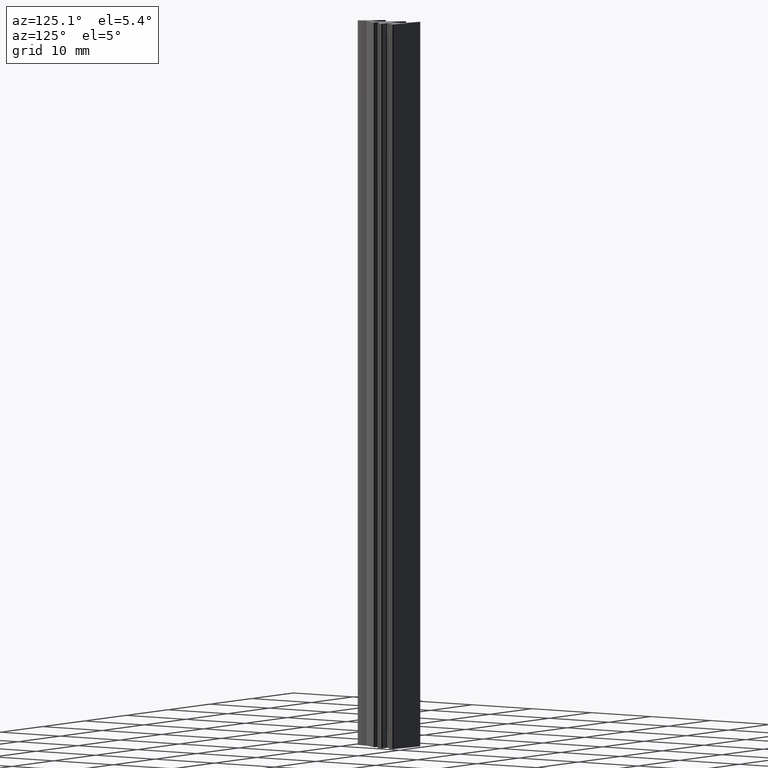
[diagram: clean part render]
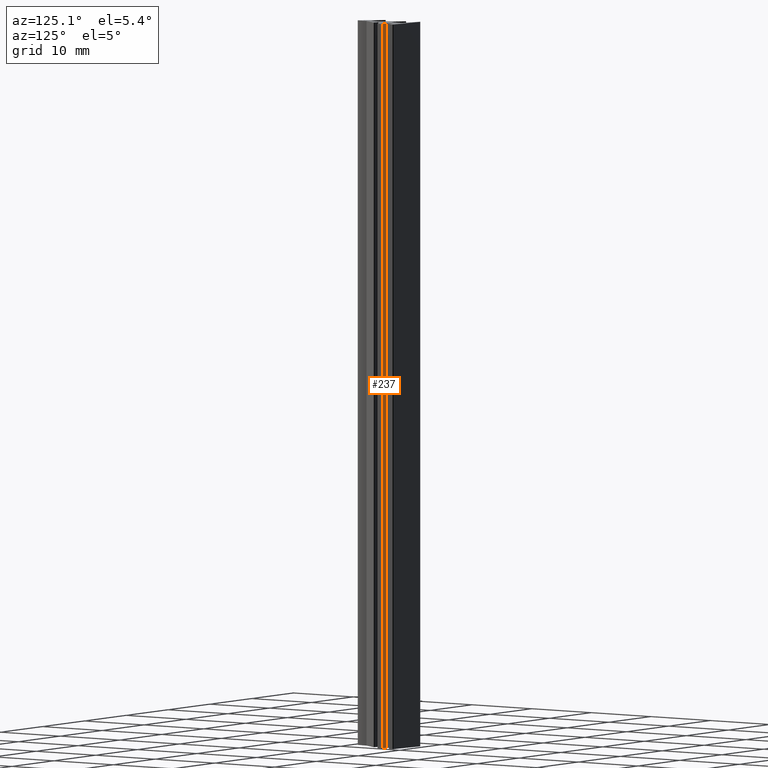
[diagram: same view with one face highlighted and labeled with its STEP entity id]
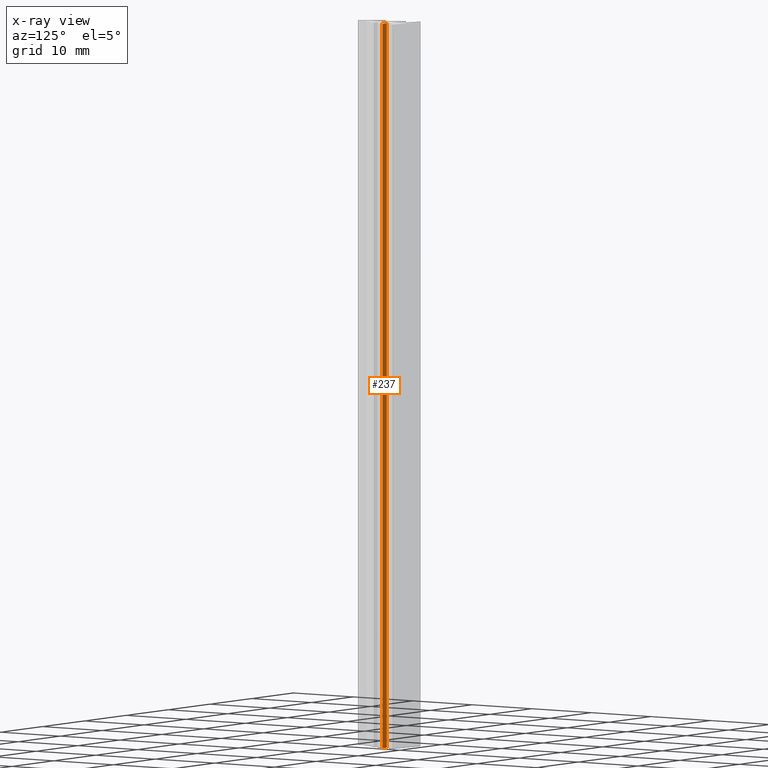
[diagram: x-ray of the same camera — body ghosted, the highlighted face saturated]
A machine part, auxiliary view. The second image highlights one B-rep face of the part: STEP entity #237.
The next image is the same camera in x-ray: the body ghosted, the highlighted face saturated — about 0% of this face is hidden behind the body in this view.
In plain terms, the highlighted planar face has unit normal (0, 1, 0).
Its self-contained STEP definition (entity closure, byte-faithful):
#179=CARTESIAN_POINT('',(2.288606489881204,5.772002627998518,0.0));
#180=VERTEX_POINT('',#179);
#188=CARTESIAN_POINT('',(2.288606489881204,5.772002627998518,100.0));
#189=VERTEX_POINT('',#188);
#190=CARTESIAN_POINT('',(2.288606489881204,5.772002627998518,0.0));
#191=DIRECTION('',(0.0,0.0,1.0));
#192=VECTOR('',#191,100.0);
#193=LINE('',#190,#192);
#194=EDGE_CURVE('',#180,#189,#193,.T.);
#207=CARTESIAN_POINT('',(2.288606489881204,5.772002627998518,0.0));
#208=DIRECTION('',(0.0,1.0,0.0));
#209=DIRECTION('',(-1.0,0.0,0.0));
#210=AXIS2_PLACEMENT_3D('',#207,#208,#209);
#211=PLANE('',#210);
#212=CARTESIAN_POINT('',(1.336219787783648,5.772002627997608,0.0));
#213=VERTEX_POINT('',#212);
#214=CARTESIAN_POINT('',(2.288606489881204,5.772002627998518,0.0));
#215=DIRECTION('',(-1.0,0.0,0.0));
#216=VECTOR('',#215,0.952386702097839);
#217=LINE('',#214,#216);
#218=EDGE_CURVE('',#180,#213,#217,.T.);
#219=ORIENTED_EDGE('',*,*,#218,.T.);
#220=CARTESIAN_POINT('',(1.336219787783648,5.772002627997608,100.0));
#221=VERTEX_POINT('',#220);
#222=CARTESIAN_POINT('',(1.336219787783648,5.772002627997608,0.0));
#223=DIRECTION('',(0.0,0.0,1.0));
#224=VECTOR('',#223,100.0);
#225=LINE('',#222,#224);
#226=EDGE_CURVE('',#213,#221,#225,.T.);
#227=ORIENTED_EDGE('',*,*,#226,.T.);
#228=CARTESIAN_POINT('',(2.288606489881204,5.772002627998518,100.0));
#229=DIRECTION('',(-1.0,0.0,0.0));
#230=VECTOR('',#229,0.952386702097839);
#231=LINE('',#228,#230);
#232=EDGE_CURVE('',#189,#221,#231,.T.);
#233=ORIENTED_EDGE('',*,*,#232,.F.);
#234=ORIENTED_EDGE('',*,*,#194,.F.);
#235=EDGE_LOOP('',(#219,#227,#233,#234));
#236=FACE_OUTER_BOUND('',#235,.T.);
#237=ADVANCED_FACE('',(#236),#211,.T.);